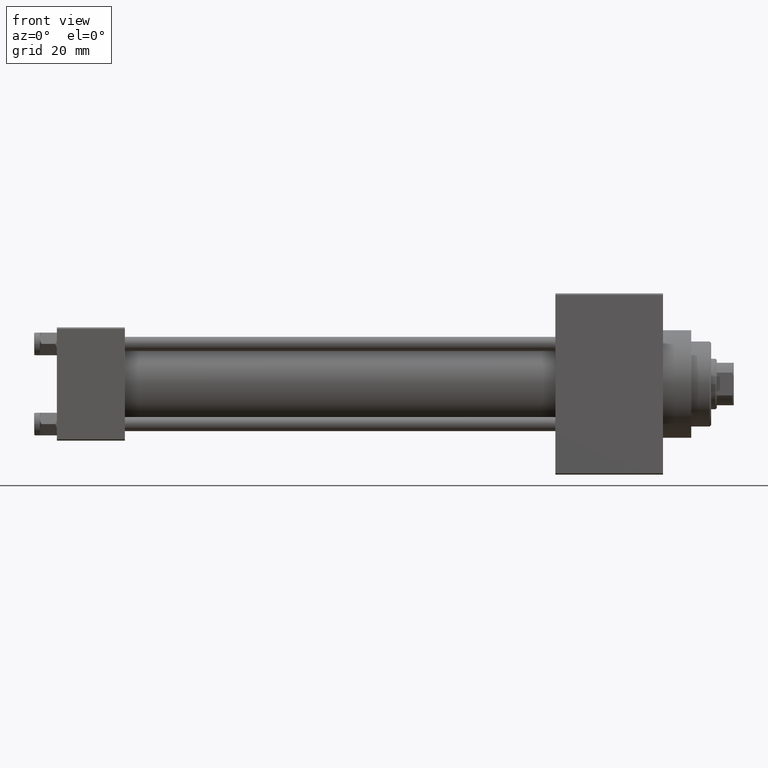
[diagram: clean part render]
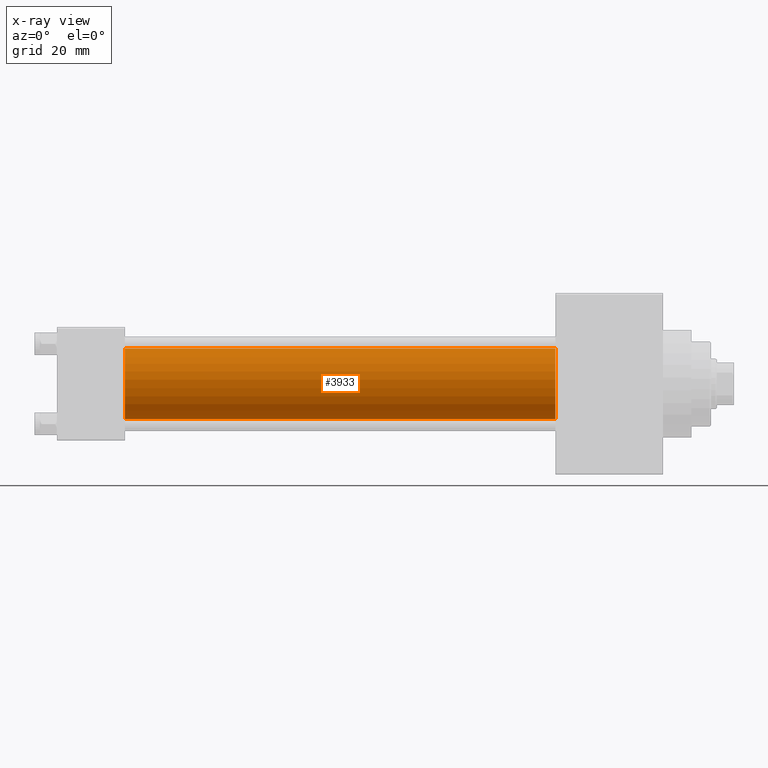
[diagram: x-ray — body ghosted, one internal face saturated and labeled with its STEP entity id]
A machine part, front view, then the same camera in x-ray: the body is ghosted and one INTERNAL B-rep face — a face not visible from any outside direction — is saturated and labeled: STEP entity #3933.
In plain terms, the highlighted cylindrical surface (edge-blend (fillet) strip) has radius 12.5 mm, axis along (-1, -0, -0).
Its self-contained STEP definition (entity closure, byte-faithful):
#360 = AXIS2_PLACEMENT_3D ( 'NONE', #4756, #34481, #20186 ) ;
#3896 = ORIENTED_EDGE ( 'NONE', *, *, #34825, .F. ) ;
#3933 = ADVANCED_FACE ( 'NONE', ( #15686 ), #23518, .F. ) ;
#4756 = CARTESIAN_POINT ( 'NONE',  ( 176.0000000000000000, -2.602085213965210642E-15, 0.000000000000000000 ) ) ;
#7024 = VECTOR ( 'NONE', #8871, 1000.000000000000000 ) ;
#7685 = CIRCLE ( 'NONE', #21314, 12.49999999999999645 ) ;
#8367 = DIRECTION ( 'NONE',  ( 0.000000000000000000, 0.000000000000000000, -1.000000000000000000 ) ) ;
#8871 = DIRECTION ( 'NONE',  ( -1.000000000000000000, -0.000000000000000000, -0.000000000000000000 ) ) ;
#11190 = CARTESIAN_POINT ( 'NONE',  ( 24.00000000000000000, -1.071276715031019515E-15, -12.49999999999999645 ) ) ;
#12605 = VECTOR ( 'NONE', #31968, 1000.000000000000000 ) ;
#12802 = EDGE_CURVE ( 'NONE', #40415, #46963, #27925, .T. ) ;
#14191 = VERTEX_POINT ( 'NONE', #22912 ) ;
#14472 = EDGE_LOOP ( 'NONE', ( #21461, #44368, #15763, #3896 ) ) ;
#15686 = FACE_OUTER_BOUND ( 'NONE', #14472, .T. ) ;
#15763 = ORIENTED_EDGE ( 'NONE', *, *, #21737, .F. ) ;
#20186 = DIRECTION ( 'NONE',  ( 0.000000000000000000, 0.000000000000000000, 1.000000000000000000 ) ) ;
#21314 = AXIS2_PLACEMENT_3D ( 'NONE', #44790, #22404, #8367 ) ;
#21461 = ORIENTED_EDGE ( 'NONE', *, *, #27432, .T. ) ;
#21737 = EDGE_CURVE ( 'NONE', #14191, #46963, #42475, .T. ) ;
#22404 = DIRECTION ( 'NONE',  ( 1.000000000000000000, 0.000000000000000000, 0.000000000000000000 ) ) ;
#22912 = CARTESIAN_POINT ( 'NONE',  ( 24.00000000000000000, -2.602085213965210642E-15, 12.49999999999999645 ) ) ;
#23518 = CYLINDRICAL_SURFACE ( 'NONE', #360, 12.49999999999999645 ) ;
#23839 = LINE ( 'NONE', #33872, #7024 ) ;
#24207 = AXIS2_PLACEMENT_3D ( 'NONE', #38969, #28246, #32530 ) ;
#27432 = EDGE_CURVE ( 'NONE', #41860, #40415, #7685, .T. ) ;
#27925 = LINE ( 'NONE', #46272, #12605 ) ;
#28246 = DIRECTION ( 'NONE',  ( 1.000000000000000000, 0.000000000000000000, 0.000000000000000000 ) ) ;
#31968 = DIRECTION ( 'NONE',  ( -1.000000000000000000, -0.000000000000000000, -0.000000000000000000 ) ) ;
#32530 = DIRECTION ( 'NONE',  ( 0.000000000000000000, 0.000000000000000000, -1.000000000000000000 ) ) ;
#33872 = CARTESIAN_POINT ( 'NONE',  ( 176.0000000000000000, -2.602085213965210642E-15, 12.49999999999999645 ) ) ;
#33955 = CARTESIAN_POINT ( 'NONE',  ( 176.0000000000000000, -1.071276715031019515E-15, -12.49999999999999645 ) ) ;
#34481 = DIRECTION ( 'NONE',  ( -1.000000000000000000, -0.000000000000000000, -0.000000000000000000 ) ) ;
#34825 = EDGE_CURVE ( 'NONE', #41860, #14191, #23839, .T. ) ;
#38969 = CARTESIAN_POINT ( 'NONE',  ( 24.00000000000000000, -2.602085213965210642E-15, 0.000000000000000000 ) ) ;
#40415 = VERTEX_POINT ( 'NONE', #33955 ) ;
#41860 = VERTEX_POINT ( 'NONE', #42085 ) ;
#42085 = CARTESIAN_POINT ( 'NONE',  ( 176.0000000000000000, -2.602085213965210642E-15, 12.49999999999999645 ) ) ;
#42475 = CIRCLE ( 'NONE', #24207, 12.49999999999999645 ) ;
#44368 = ORIENTED_EDGE ( 'NONE', *, *, #12802, .T. ) ;
#44790 = CARTESIAN_POINT ( 'NONE',  ( 176.0000000000000000, -2.602085213965210642E-15, 0.000000000000000000 ) ) ;
#46272 = CARTESIAN_POINT ( 'NONE',  ( 176.0000000000000000, -1.071276715031019515E-15, -12.49999999999999645 ) ) ;
#46963 = VERTEX_POINT ( 'NONE', #11190 ) ;